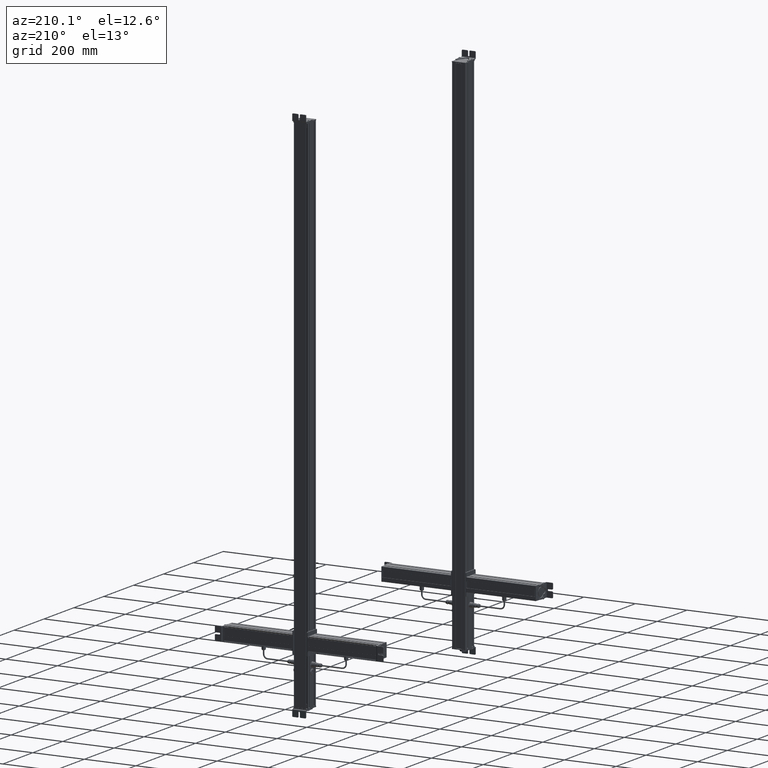
[diagram: clean part render]
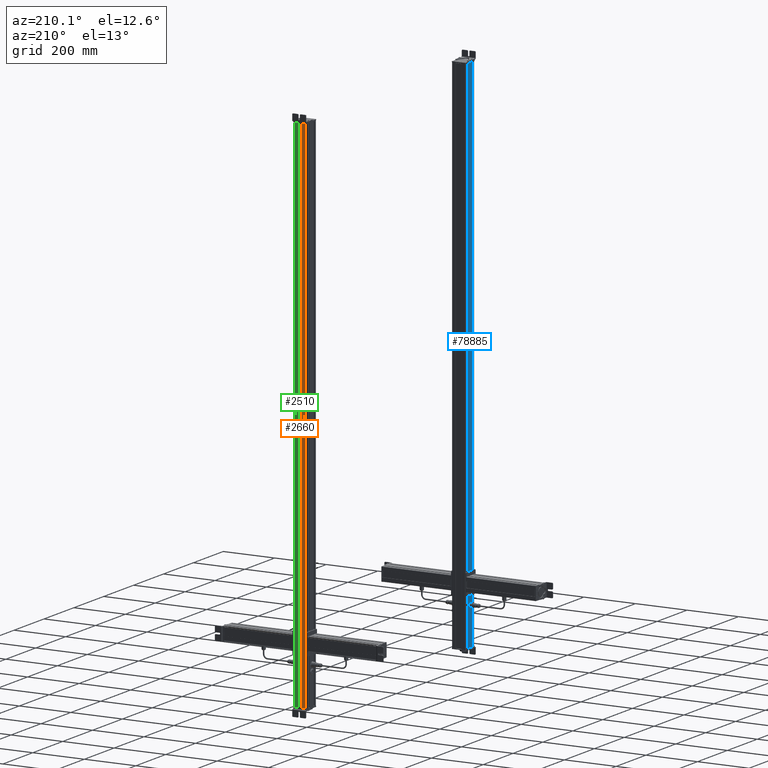
[diagram: same view with three faces highlighted in distinct colors, each labeled with its STEP entity id]
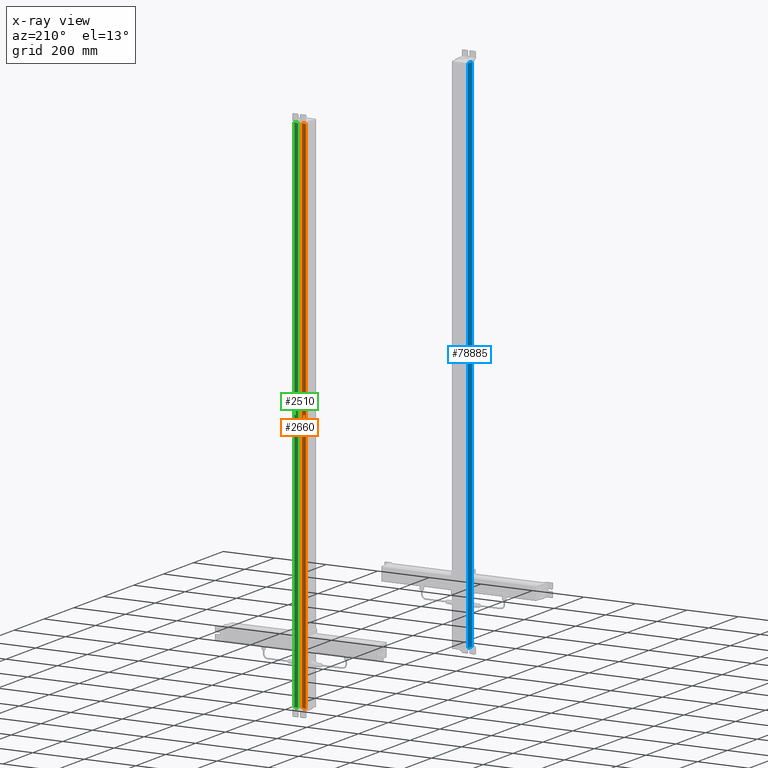
[diagram: x-ray of the same camera — body ghosted, the three highlighted faces saturated]
A machine part, auxiliary view with three faces highlighted in distinct colors.
The next image is the same camera in x-ray (body ghosted, the three faces saturated) — at least one of them is partly hidden behind the body in this view.
Their STEP definitions:

[orange] entity #2660 — the highlighted planar face has unit normal (0, 1, 0).
#2480=CARTESIAN_POINT('Axis2P3D Location',(647.67209889,120.060780121,0.)) ;
#2613=CARTESIAN_POINT('Vertex',(647.67209889,120.060780121,2012.)) ;
#2620=CARTESIAN_POINT('Vertex',(647.67209889,120.060780121,0.)) ;
#2623=CARTESIAN_POINT('Line Origine',(647.67209889,120.060780121,1006.)) ;
#2635=CARTESIAN_POINT('Line Origine',(654.908380451,120.060780121,0.)) ;
#2639=CARTESIAN_POINT('Vertex',(662.144662012,120.060780121,0.)) ;
#2642=CARTESIAN_POINT('Line Origine',(662.144662012,120.060780121,1006.)) ;
#2646=CARTESIAN_POINT('Vertex',(662.144662012,120.060780121,2012.)) ;
#2649=CARTESIAN_POINT('Line Origine',(654.908380451,120.060780121,2012.)) ;
#2481=DIRECTION('Axis2P3D Direction',(0.,-1.,0.)) ;
#2482=DIRECTION('Axis2P3D XDirection',(1.,0.,0.)) ;
#2624=DIRECTION('Vector Direction',(0.,0.,1.)) ;
#2636=DIRECTION('Vector Direction',(1.,0.,0.)) ;
#2643=DIRECTION('Vector Direction',(0.,0.,1.)) ;
#2650=DIRECTION('Vector Direction',(1.,0.,0.)) ;
#2483=AXIS2_PLACEMENT_3D('Plane Axis2P3D',#2480,#2481,#2482) ;
#2655=ORIENTED_EDGE('',*,*,#2627,.F.) ;
#2656=ORIENTED_EDGE('',*,*,#2641,.T.) ;
#2657=ORIENTED_EDGE('',*,*,#2648,.T.) ;
#2658=ORIENTED_EDGE('',*,*,#2653,.F.) ;
#2625=VECTOR('Line Direction',#2624,1.) ;
#2637=VECTOR('Line Direction',#2636,1.) ;
#2644=VECTOR('Line Direction',#2643,1.) ;
#2651=VECTOR('Line Direction',#2650,1.) ;
#2660=ADVANCED_FACE('Body.2',(#2659),#2484,.T.) ;
#2627=EDGE_CURVE('',#2621,#2614,#2626,.T.) ;
#2641=EDGE_CURVE('',#2621,#2640,#2638,.T.) ;
#2648=EDGE_CURVE('',#2640,#2647,#2645,.T.) ;
#2653=EDGE_CURVE('',#2614,#2647,#2652,.T.) ;
#2654=EDGE_LOOP('',(#2655,#2656,#2657,#2658)) ;
#2659=FACE_OUTER_BOUND('',#2654,.T.) ;
#2626=LINE('Line',#2623,#2625) ;
#2638=LINE('Line',#2635,#2637) ;
#2645=LINE('Line',#2642,#2644) ;
#2652=LINE('Line',#2649,#2651) ;
#2484=PLANE('Plane',#2483) ;
#2614=VERTEX_POINT('',#2613) ;
#2621=VERTEX_POINT('',#2620) ;
#2640=VERTEX_POINT('',#2639) ;
#2647=VERTEX_POINT('',#2646) ;

[blue] entity #78885 — the highlighted planar face has unit normal (-1, 0, 0).
#78126=CARTESIAN_POINT('Axis2P3D Location',(613.195548937,133.067790275,0.)) ;
#78838=CARTESIAN_POINT('Vertex',(613.195548938,166.010394004,0.)) ;
#78841=CARTESIAN_POINT('Line Origine',(613.195548938,166.010394004,1006.)) ;
#78845=CARTESIAN_POINT('Vertex',(613.195548938,166.010394004,2012.)) ;
#78860=CARTESIAN_POINT('Line Origine',(613.195548937,152.38909214,0.)) ;
#78864=CARTESIAN_POINT('Vertex',(613.195548937,138.767790274,0.)) ;
#78867=CARTESIAN_POINT('Line Origine',(613.195548937,138.767790274,1006.)) ;
#78871=CARTESIAN_POINT('Vertex',(613.195548937,138.767790274,2012.)) ;
#78874=CARTESIAN_POINT('Line Origine',(613.195548937,152.38909214,2012.)) ;
#78127=DIRECTION('Axis2P3D Direction',(-1.,0.,0.)) ;
#78128=DIRECTION('Axis2P3D XDirection',(0.,-1.,0.)) ;
#78842=DIRECTION('Vector Direction',(0.,0.,1.)) ;
#78861=DIRECTION('Vector Direction',(0.,-1.,0.)) ;
#78868=DIRECTION('Vector Direction',(0.,0.,1.)) ;
#78875=DIRECTION('Vector Direction',(0.,-1.,0.)) ;
#78129=AXIS2_PLACEMENT_3D('Plane Axis2P3D',#78126,#78127,#78128) ;
#78880=ORIENTED_EDGE('',*,*,#78847,.F.) ;
#78881=ORIENTED_EDGE('',*,*,#78866,.T.) ;
#78882=ORIENTED_EDGE('',*,*,#78873,.T.) ;
#78883=ORIENTED_EDGE('',*,*,#78878,.F.) ;
#78843=VECTOR('Line Direction',#78842,1.) ;
#78862=VECTOR('Line Direction',#78861,1.) ;
#78869=VECTOR('Line Direction',#78868,1.) ;
#78876=VECTOR('Line Direction',#78875,1.) ;
#78885=ADVANCED_FACE('Body.2',(#78884),#78130,.T.) ;
#78847=EDGE_CURVE('',#78839,#78846,#78844,.T.) ;
#78866=EDGE_CURVE('',#78839,#78865,#78863,.T.) ;
#78873=EDGE_CURVE('',#78865,#78872,#78870,.T.) ;
#78878=EDGE_CURVE('',#78846,#78872,#78877,.T.) ;
#78879=EDGE_LOOP('',(#78880,#78881,#78882,#78883)) ;
#78884=FACE_OUTER_BOUND('',#78879,.T.) ;
#78844=LINE('Line',#78841,#78843) ;
#78863=LINE('Line',#78860,#78862) ;
#78870=LINE('Line',#78867,#78869) ;
#78877=LINE('Line',#78874,#78876) ;
#78130=PLANE('Plane',#78129) ;
#78839=VERTEX_POINT('',#78838) ;
#78846=VERTEX_POINT('',#78845) ;
#78865=VERTEX_POINT('',#78864) ;
#78872=VERTEX_POINT('',#78871) ;

[green] entity #2510 — the highlighted planar face has unit normal (0, 1, 0).
#2458=CARTESIAN_POINT('Vertex',(617.246770587,120.060780121,0.)) ;
#2461=CARTESIAN_POINT('Line Origine',(617.246770587,120.060780121,1006.)) ;
#2465=CARTESIAN_POINT('Vertex',(617.246770587,120.060780121,2012.)) ;
#2480=CARTESIAN_POINT('Axis2P3D Location',(647.67209889,120.060780121,0.)) ;
#2485=CARTESIAN_POINT('Line Origine',(624.483052148,120.060780121,0.)) ;
#2489=CARTESIAN_POINT('Vertex',(631.719333708,120.060780121,0.)) ;
#2492=CARTESIAN_POINT('Line Origine',(631.719333708,120.060780121,1006.)) ;
#2496=CARTESIAN_POINT('Vertex',(631.719333708,120.060780121,2012.)) ;
#2499=CARTESIAN_POINT('Line Origine',(624.483052148,120.060780121,2012.)) ;
#2462=DIRECTION('Vector Direction',(0.,0.,1.)) ;
#2481=DIRECTION('Axis2P3D Direction',(0.,-1.,0.)) ;
#2482=DIRECTION('Axis2P3D XDirection',(1.,0.,0.)) ;
#2486=DIRECTION('Vector Direction',(1.,0.,0.)) ;
#2493=DIRECTION('Vector Direction',(0.,0.,1.)) ;
#2500=DIRECTION('Vector Direction',(1.,0.,0.)) ;
#2483=AXIS2_PLACEMENT_3D('Plane Axis2P3D',#2480,#2481,#2482) ;
#2505=ORIENTED_EDGE('',*,*,#2467,.F.) ;
#2506=ORIENTED_EDGE('',*,*,#2491,.T.) ;
#2507=ORIENTED_EDGE('',*,*,#2498,.T.) ;
#2508=ORIENTED_EDGE('',*,*,#2503,.F.) ;
#2463=VECTOR('Line Direction',#2462,1.) ;
#2487=VECTOR('Line Direction',#2486,1.) ;
#2494=VECTOR('Line Direction',#2493,1.) ;
#2501=VECTOR('Line Direction',#2500,1.) ;
#2510=ADVANCED_FACE('Body.2',(#2509),#2484,.T.) ;
#2467=EDGE_CURVE('',#2459,#2466,#2464,.T.) ;
#2491=EDGE_CURVE('',#2459,#2490,#2488,.T.) ;
#2498=EDGE_CURVE('',#2490,#2497,#2495,.T.) ;
#2503=EDGE_CURVE('',#2466,#2497,#2502,.T.) ;
#2504=EDGE_LOOP('',(#2505,#2506,#2507,#2508)) ;
#2509=FACE_OUTER_BOUND('',#2504,.T.) ;
#2464=LINE('Line',#2461,#2463) ;
#2488=LINE('Line',#2485,#2487) ;
#2495=LINE('Line',#2492,#2494) ;
#2502=LINE('Line',#2499,#2501) ;
#2484=PLANE('Plane',#2483) ;
#2459=VERTEX_POINT('',#2458) ;
#2466=VERTEX_POINT('',#2465) ;
#2490=VERTEX_POINT('',#2489) ;
#2497=VERTEX_POINT('',#2496) ;